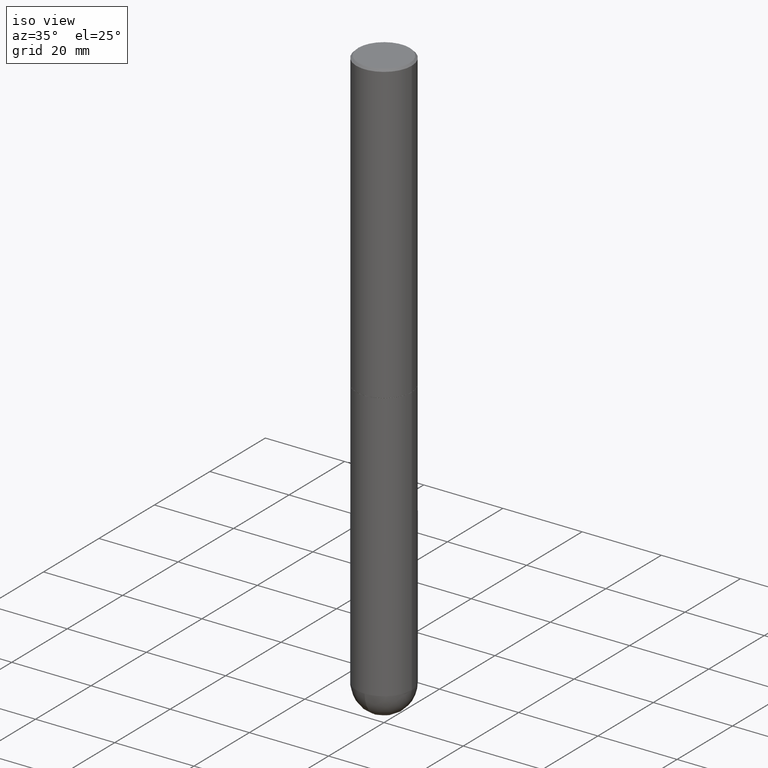
[diagram: clean part render]
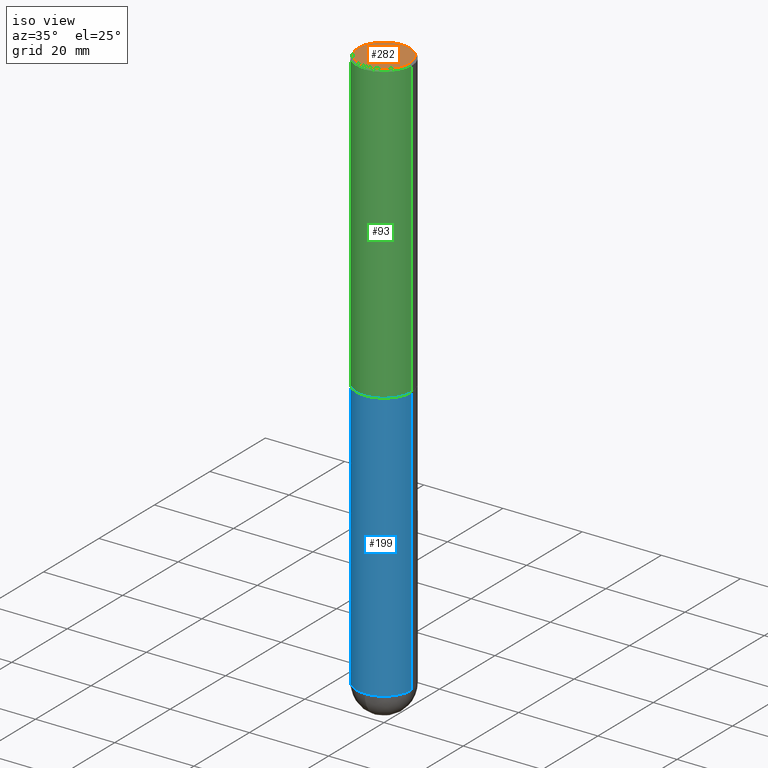
[diagram: same view with three faces highlighted in distinct colors, each labeled with its STEP entity id]
A machine part, iso view with three faces highlighted in distinct colors.
Their STEP definitions:

[orange] entity #282 — the highlighted planar face has unit normal (0, -0, -1).
#10 = DIRECTION ( 'NONE',  ( 1.000000000000000000, -6.982962677686267499E-15, 4.876943595080614416E-29 ) ) ;
#75 = VERTEX_POINT ( 'NONE', #104 ) ;
#85 = PLANE ( 'NONE',  #275 ) ;
#86 = EDGE_CURVE ( 'NONE', #75, #271, #260, .T. ) ;
#104 = CARTESIAN_POINT ( 'NONE',  ( 0.2555999999999999384, -1.857063081596550031E-15, 9.390727478222178701E-17 ) ) ;
#117 = DIRECTION ( 'NONE',  ( 1.000000000000000000, -6.982962677686267499E-15, 4.876943595080614416E-29 ) ) ;
#142 = CARTESIAN_POINT ( 'NONE',  ( -0.2555999999999999384, 1.819760073805041190E-15, 9.390727478219644485E-17 ) ) ;
#147 = DIRECTION ( 'NONE',  ( -2.445468806185136597E-29, 3.491481338843145583E-15, 1.000000000000000000 ) ) ;
#150 = CARTESIAN_POINT ( 'NONE',  ( -2.296473111537483331E-45, 3.278754974836984114E-31, 9.390727478220904197E-17 ) ) ;
#176 = CARTESIAN_POINT ( 'NONE',  ( 1.784845260416609146E-15, 0.2555999999999999384, -8.454689928172032323E-16 ) ) ;
#210 = EDGE_CURVE ( 'NONE', #271, #75, #401, .T. ) ;
#221 = AXIS2_PLACEMENT_3D ( 'NONE', #297, #397, #10 ) ;
#260 = CIRCLE ( 'NONE', #221, 0.2555999999999999384 ) ;
#271 = VERTEX_POINT ( 'NONE', #142 ) ;
#275 = AXIS2_PLACEMENT_3D ( 'NONE', #176, #308, #409 ) ;
#282 = ADVANCED_FACE ( 'NONE', ( #368 ), #85, .F. ) ;
#297 = CARTESIAN_POINT ( 'NONE',  ( -2.296473111537483331E-45, 3.278754974836984114E-31, 9.390727478220904197E-17 ) ) ;
#304 = ORIENTED_EDGE ( 'NONE', *, *, #210, .T. ) ;
#308 = DIRECTION ( 'NONE',  ( 2.438088387897960049E-29, -3.491481338843145188E-15, -1.000000000000000000 ) ) ;
#323 = ORIENTED_EDGE ( 'NONE', *, *, #86, .T. ) ;
#368 = FACE_OUTER_BOUND ( 'NONE', #396, .T. ) ;
#396 = EDGE_LOOP ( 'NONE', ( #304, #323 ) ) ;
#397 = DIRECTION ( 'NONE',  ( -2.445468806185136597E-29, 3.491481338843145583E-15, 1.000000000000000000 ) ) ;
#401 = CIRCLE ( 'NONE', #411, 0.2555999999999999384 ) ;
#409 = DIRECTION ( 'NONE',  ( -1.000000000000000000, 6.982962677686265922E-15, -4.876176775795935793E-29 ) ) ;
#411 = AXIS2_PLACEMENT_3D ( 'NONE', #150, #147, #117 ) ;

[blue] entity #199 — the highlighted cylindrical surface (edge-blend (fillet) strip) has radius 7.0002 mm, axis along (-0, 0, 1).
#5 = CYLINDRICAL_SURFACE ( 'NONE', #341, 0.2756000000000000671 ) ;
#16 = VERTEX_POINT ( 'NONE', #103 ) ;
#27 = CARTESIAN_POINT ( 'NONE',  ( -0.2756000000000000671, 1.958255779754836589E-15, -1.355658510874252287E-29 ) ) ;
#28 = LINE ( 'NONE', #244, #153 ) ;
#30 = DIRECTION ( 'NONE',  ( 1.000000000000000000, -6.982962677686267499E-15, 4.876176775795935793E-29 ) ) ;
#49 = CIRCLE ( 'NONE', #307, 0.2756000000000000671 ) ;
#63 = ORIENTED_EDGE ( 'NONE', *, *, #223, .F. ) ;
#70 = DIRECTION ( 'NONE',  ( -2.445468806185136597E-29, 3.491481338843145583E-15, 1.000000000000000000 ) ) ;
#91 = VERTEX_POINT ( 'NONE', #262 ) ;
#92 = DIRECTION ( 'NONE',  ( -2.445468806185136597E-29, 3.491481338843145583E-15, 1.000000000000000000 ) ) ;
#97 = EDGE_CURVE ( 'NONE', #91, #148, #377, .T. ) ;
#103 = CARTESIAN_POINT ( 'NONE',  ( 0.2756000000000000671, -1.690749838334792865E-14, -5.629900000000000126 ) ) ;
#107 = EDGE_CURVE ( 'NONE', #361, #16, #132, .T. ) ;
#129 = CARTESIAN_POINT ( 'NONE',  ( 0.000000000000000000, 0.000000000000000000, 0.000000000000000000 ) ) ;
#132 = CIRCLE ( 'NONE', #309, 0.2756000000000000671 ) ;
#148 = VERTEX_POINT ( 'NONE', #326 ) ;
#151 = DIRECTION ( 'NONE',  ( -2.445468806185136877E-29, 3.491481338843145188E-15, 1.000000000000000000 ) ) ;
#152 = CARTESIAN_POINT ( 'NONE',  ( -0.2756000000000000671, -1.302473808962275553E-14, -5.629900000000000126 ) ) ;
#153 = VECTOR ( 'NONE', #408, 39.37007874015748143 ) ;
#160 = FACE_OUTER_BOUND ( 'NONE', #246, .T. ) ;
#164 = DIRECTION ( 'NONE',  ( -2.445468806185136597E-29, 3.491481338843145583E-15, 1.000000000000000000 ) ) ;
#182 = ORIENTED_EDGE ( 'NONE', *, *, #369, .T. ) ;
#184 = LINE ( 'NONE', #27, #212 ) ;
#199 = ADVANCED_FACE ( 'NONE', ( #160 ), #5, .T. ) ;
#212 = VECTOR ( 'NONE', #151, 39.37007874015748143 ) ;
#214 = DIRECTION ( 'NONE',  ( 1.000000000000000000, -6.982962677686264344E-15, 0.000000000000000000 ) ) ;
#222 = VERTEX_POINT ( 'NONE', #152 ) ;
#223 = EDGE_CURVE ( 'NONE', #222, #91, #184, .T. ) ;
#225 = CARTESIAN_POINT ( 'NONE',  ( 7.220735744022852519E-29, -1.030929694920215502E-14, -2.952700000000000102 ) ) ;
#244 = CARTESIAN_POINT ( 'NONE',  ( 0.2756000000000000671, -1.924504513970335743E-15, 1.343874319409360268E-29 ) ) ;
#246 = EDGE_LOOP ( 'NONE', ( #63, #182, #380, #299, #248 ) ) ;
#248 = ORIENTED_EDGE ( 'NONE', *, *, #97, .F. ) ;
#262 = CARTESIAN_POINT ( 'NONE',  ( -0.2756000000000000116, -1.302473808962275237E-14, -2.952700000000000102 ) ) ;
#284 = DIRECTION ( 'NONE',  ( 1.000000000000000000, -6.982962677686265922E-15, 0.000000000000000000 ) ) ;
#288 = DIRECTION ( 'NONE',  ( 1.000000000000000000, -6.982962677686264344E-15, 0.000000000000000000 ) ) ;
#299 = ORIENTED_EDGE ( 'NONE', *, *, #374, .T. ) ;
#301 = DIRECTION ( 'NONE',  ( -2.445468806185136597E-29, 3.491481338843145583E-15, 1.000000000000000000 ) ) ;
#307 = AXIS2_PLACEMENT_3D ( 'NONE', #387, #301, #214 ) ;
#309 = AXIS2_PLACEMENT_3D ( 'NONE', #393, #164, #288 ) ;
#317 = CARTESIAN_POINT ( 'NONE',  ( -1.958255779754700116E-15, -0.2756000000000199956, -5.629899999999999238 ) ) ;
#326 = CARTESIAN_POINT ( 'NONE',  ( 0.2756000000000000116, -1.223380146317248997E-14, -2.952700000000000102 ) ) ;
#341 = AXIS2_PLACEMENT_3D ( 'NONE', #129, #70, #30 ) ;
#361 = VERTEX_POINT ( 'NONE', #317 ) ;
#369 = EDGE_CURVE ( 'NONE', #222, #361, #49, .T. ) ;
#374 = EDGE_CURVE ( 'NONE', #16, #148, #28, .T. ) ;
#377 = CIRCLE ( 'NONE', #389, 0.2756000000000000116 ) ;
#380 = ORIENTED_EDGE ( 'NONE', *, *, #107, .T. ) ;
#387 = CARTESIAN_POINT ( 'NONE',  ( 1.376774483194169922E-28, -1.965669078955302449E-14, -5.629900000000000126 ) ) ;
#389 = AXIS2_PLACEMENT_3D ( 'NONE', #225, #92, #284 ) ;
#393 = CARTESIAN_POINT ( 'NONE',  ( 1.376774483194169922E-28, -1.965669078955302449E-14, -5.629900000000000126 ) ) ;
#408 = DIRECTION ( 'NONE',  ( -2.445468806185136877E-29, 3.491481338843145188E-15, 1.000000000000000000 ) ) ;

[green] entity #93 — the highlighted cylindrical surface (edge-blend (fillet) strip) has radius 7.0002 mm, axis along (-0, 0, 1).
#9 = EDGE_CURVE ( 'NONE', #295, #367, #131, .T. ) ;
#14 = ORIENTED_EDGE ( 'NONE', *, *, #41, .F. ) ;
#23 = VECTOR ( 'NONE', #358, 39.37007874015748143 ) ;
#32 = CIRCLE ( 'NONE', #405, 0.2756000000000000116 ) ;
#36 = ORIENTED_EDGE ( 'NONE', *, *, #198, .T. ) ;
#38 = DIRECTION ( 'NONE',  ( -2.445468806185136877E-29, 3.491481338843145188E-15, 1.000000000000000000 ) ) ;
#41 = EDGE_CURVE ( 'NONE', #367, #311, #32, .T. ) ;
#47 = EDGE_CURVE ( 'NONE', #295, #376, #395, .T. ) ;
#52 = ORIENTED_EDGE ( 'NONE', *, *, #9, .F. ) ;
#72 = CARTESIAN_POINT ( 'NONE',  ( -0.2756000000000002337, 1.958255779754837773E-15, -1.355658510874253128E-29 ) ) ;
#78 = EDGE_LOOP ( 'NONE', ( #52, #186, #36, #14 ) ) ;
#93 = ADVANCED_FACE ( 'NONE', ( #133 ), #121, .T. ) ;
#98 = CARTESIAN_POINT ( 'NONE',  ( 7.218290275216666916E-29, -1.030580546786331359E-14, -2.951700000000000212 ) ) ;
#102 = AXIS2_PLACEMENT_3D ( 'NONE', #98, #258, #162 ) ;
#121 = CYLINDRICAL_SURFACE ( 'NONE', #201, 0.2756000000000002337 ) ;
#124 = CARTESIAN_POINT ( 'NONE',  ( -0.2756000000000000116, 1.854674887193472050E-15, -0.02000000000000006287 ) ) ;
#131 = LINE ( 'NONE', #72, #23 ) ;
#133 = FACE_OUTER_BOUND ( 'NONE', #78, .T. ) ;
#162 = DIRECTION ( 'NONE',  ( 1.000000000000000000, -6.982962677686269077E-15, 0.000000000000000000 ) ) ;
#181 = CARTESIAN_POINT ( 'NONE',  ( 0.2756000000000000116, -1.960582874962697406E-15, -0.02000000000000006287 ) ) ;
#186 = ORIENTED_EDGE ( 'NONE', *, *, #47, .T. ) ;
#193 = DIRECTION ( 'NONE',  ( -2.445468806185136597E-29, 3.491481338843145583E-15, 1.000000000000000000 ) ) ;
#198 = EDGE_CURVE ( 'NONE', #376, #311, #254, .T. ) ;
#201 = AXIS2_PLACEMENT_3D ( 'NONE', #231, #351, #385 ) ;
#231 = CARTESIAN_POINT ( 'NONE',  ( 0.000000000000000000, 0.000000000000000000, 0.000000000000000000 ) ) ;
#254 = LINE ( 'NONE', #321, #287 ) ;
#258 = DIRECTION ( 'NONE',  ( -2.445468806185136597E-29, 3.491481338843145583E-15, 1.000000000000000000 ) ) ;
#277 = CARTESIAN_POINT ( 'NONE',  ( 0.2756000000000004557, -1.223030998183365327E-14, -2.951700000000000212 ) ) ;
#287 = VECTOR ( 'NONE', #38, 39.37007874015748143 ) ;
#295 = VERTEX_POINT ( 'NONE', #310 ) ;
#310 = CARTESIAN_POINT ( 'NONE',  ( -0.2756000000000004002, -3.229561767565246331E-15, -2.951700000000000212 ) ) ;
#311 = VERTEX_POINT ( 'NONE', #181 ) ;
#321 = CARTESIAN_POINT ( 'NONE',  ( 0.2756000000000002337, -1.924504513970336926E-15, 1.343874319409361109E-29 ) ) ;
#350 = CARTESIAN_POINT ( 'NONE',  ( 4.890937612370288923E-31, -6.982962677686312563E-17, -0.02000000000000006287 ) ) ;
#351 = DIRECTION ( 'NONE',  ( -2.445468806185136597E-29, 3.491481338843145583E-15, 1.000000000000000000 ) ) ;
#358 = DIRECTION ( 'NONE',  ( -2.445468806185136877E-29, 3.491481338843145188E-15, 1.000000000000000000 ) ) ;
#367 = VERTEX_POINT ( 'NONE', #124 ) ;
#376 = VERTEX_POINT ( 'NONE', #277 ) ;
#385 = DIRECTION ( 'NONE',  ( 1.000000000000000000, -6.982962677686267499E-15, 4.876176775795935793E-29 ) ) ;
#390 = DIRECTION ( 'NONE',  ( 1.000000000000000000, -6.982962677686267499E-15, 0.000000000000000000 ) ) ;
#395 = CIRCLE ( 'NONE', #102, 0.2756000000000004557 ) ;
#405 = AXIS2_PLACEMENT_3D ( 'NONE', #350, #193, #390 ) ;